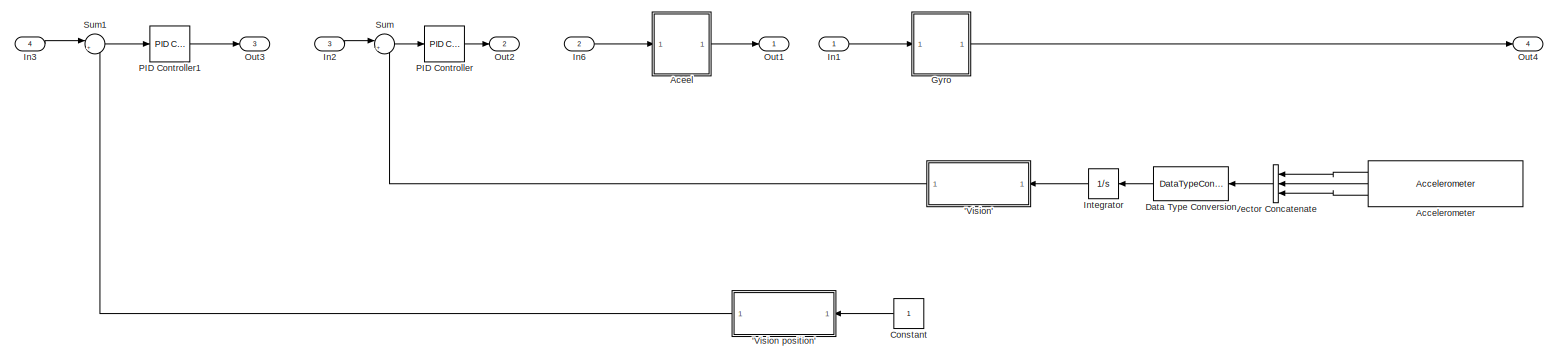
[diagram: root canvas - part 1/1, most of the canvas]
MODEL slx_53954860bcf5
KIND model
CONFIG AbsTol = auto
CONFIG EnableMultiTasking = off
CONFIG FixedStep = auto
CONFIG MaxStep = auto
CONFIG MinStep = auto
CONFIG RelTol = 1e-3
CONFIG SampleTimeConstraint = Unconstrained
CONFIG Solver = VariableStepAuto
CONFIG SolverName = VariableStepAuto
CONFIG StartTime = 0.0
CONFIG StopTime = 10.0
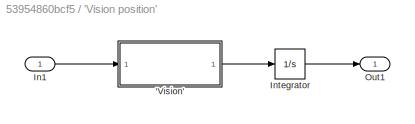
BLOCK [SubSystem] 'Vision position'
  Ports = [1, 1]
  RequestExecContextInheritance = off
  Variant = off
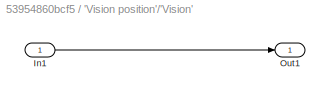
BLOCK [SubSystem] 'Vision position'/'Vision'
  Ports = [1, 1]
  RequestExecContextInheritance = off
  Variant = off
BLOCK [Inport] 'Vision position'/'Vision'/In1
  IconDisplay = Port number
BLOCK [Outport] 'Vision position'/'Vision'/Out1
  IconDisplay = Port number
BLOCK [Inport] 'Vision position'/In1
  IconDisplay = Port number
BLOCK [Integrator] 'Vision position'/Integrator
  Ports = [1, 1]
BLOCK [Outport] 'Vision position'/Out1
  IconDisplay = Port number
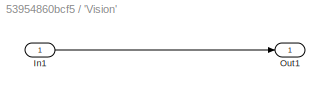
BLOCK [SubSystem] 'Vision'
  Ports = [1, 1]
  RequestExecContextInheritance = off
  Variant = off
BLOCK [Inport] 'Vision'/In1
  IconDisplay = Port number
BLOCK [Outport] 'Vision'/Out1
  IconDisplay = Port number
BLOCK [Reference] Accelerometer  REF=RASPlib/Accelerometer
  Ports = [0, 3]
  SourceBlock = RASPlib/Accelerometer
  SourceProductName = Rensselaer Arduino Support Package
  SourceType = soMPU6050Accel
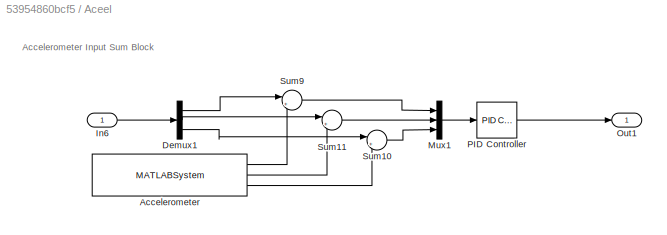
BLOCK [SubSystem] Aceel 
  Ports = [1, 1]
  RequestExecContextInheritance = off
  Variant = off
BLOCK [MATLABSystem] Aceel /Accelerometer
  MaskDisplay = disp('soMPU6050Accel');\nport_label('output',1,'xaccel');\nport_label('output',2,'yaccel');\nport_label('output',3,'zaccel');
  MaskType = soMPU6050Accel
  Ports = [0, 3]
  SimulateUsing = Code generation
  System = soMPU6050Accel
BLOCK [Demux] Aceel /Demux1
  DisplayOption = bar
  Outputs = 3
  Ports = [1, 3]
BLOCK [Inport] Aceel /In6
  IconDisplay = Port number
BLOCK [Mux] Aceel /Mux1
  DisplayOption = bar
  Inputs = 3
  Ports = [3, 1]
BLOCK [Outport] Aceel /Out1
  IconDisplay = Port number
BLOCK [Reference] Aceel /PID Controller  REF=simulink/Continuous/PID Controller
  Ports = [1, 1]
  SourceBlock = simulink/Continuous/PID Controller
  SourceProductBaseCode = SL
  SourceProductName = Simulink
  SourceType = PID 1dof
BLOCK [Sum] Aceel /Sum10
  IconShape = round
  InputSameDT = off
  Inputs = |+-
  OutDataTypeStr = Inherit: Inherit via internal rule
  Ports = [2, 1]
  SaturateOnIntegerOverflow = off
BLOCK [Sum] Aceel /Sum11
  IconShape = round
  InputSameDT = off
  Inputs = |+-
  OutDataTypeStr = Inherit: Inherit via internal rule
  Ports = [2, 1]
  SaturateOnIntegerOverflow = off
BLOCK [Sum] Aceel /Sum9
  IconShape = round
  InputSameDT = off
  Inputs = |+-
  OutDataTypeStr = Inherit: Inherit via internal rule
  Ports = [2, 1]
  SaturateOnIntegerOverflow = off
BLOCK [Constant] Constant
BLOCK [DataTypeConversion] Data Type Conversion
  OutDataTypeStr = double
  RndMeth = Floor
  SaturateOnIntegerOverflow = off
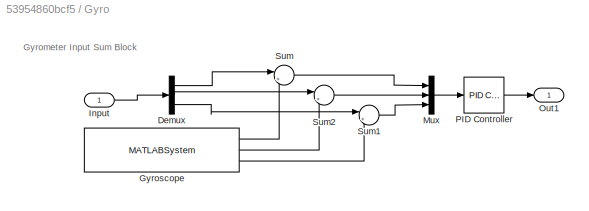
BLOCK [SubSystem] Gyro
  Ports = [1, 1]
  RequestExecContextInheritance = off
  Variant = off
BLOCK [Demux] Gyro/Demux
  DisplayOption = bar
  Outputs = 3
  Ports = [1, 3]
BLOCK [MATLABSystem] Gyro/Gyroscope
  DLPFmode = 0
  MaskDisplay = disp('soMPU6050Gyro');\nport_label('output',1,'xvel');\nport_label('output',2,'yvel');\nport_label('output',3,'zvel');
  MaskType = soMPU6050Gyro
  Ports = [0, 3]
  System = soMPU6050Gyro
BLOCK [Inport] Gyro/Input
  IconDisplay = Port number
BLOCK [Mux] Gyro/Mux
  DisplayOption = bar
  Inputs = 3
  Ports = [3, 1]
BLOCK [Outport] Gyro/Out1
  IconDisplay = Port number
BLOCK [Reference] Gyro/PID Controller  REF=simulink/Continuous/PID Controller
  Ports = [1, 1]
  SourceBlock = simulink/Continuous/PID Controller
  SourceProductBaseCode = SL
  SourceProductName = Simulink
  SourceType = PID 1dof
BLOCK [Sum] Gyro/Sum
  IconShape = round
  InputSameDT = off
  Inputs = |+-
  OutDataTypeStr = Inherit: Inherit via internal rule
  Ports = [2, 1]
  SaturateOnIntegerOverflow = off
BLOCK [Sum] Gyro/Sum1
  IconShape = round
  InputSameDT = off
  Inputs = |+-
  OutDataTypeStr = Inherit: Inherit via internal rule
  Ports = [2, 1]
  SaturateOnIntegerOverflow = off
BLOCK [Sum] Gyro/Sum2
  IconShape = round
  InputSameDT = off
  Inputs = |+-
  OutDataTypeStr = Inherit: Inherit via internal rule
  Ports = [2, 1]
  SaturateOnIntegerOverflow = off
BLOCK [Inport] In1
  IconDisplay = Port number
BLOCK [Inport] In2
  IconDisplay = Port number
  Port = 3
BLOCK [Inport] In3
  IconDisplay = Port number
  Port = 4
BLOCK [Inport] In6
  IconDisplay = Port number
  Port = 2
BLOCK [Integrator] Integrator
  Ports = [1, 1]
BLOCK [Outport] Out1
  IconDisplay = Port number
BLOCK [Outport] Out2
  IconDisplay = Port number
  Port = 2
BLOCK [Outport] Out3
  IconDisplay = Port number
  Port = 3
BLOCK [Outport] Out4
  IconDisplay = Port number
  Port = 4
BLOCK [Reference] PID Controller  REF=simulink/Continuous/PID Controller
  Ports = [1, 1]
  SourceBlock = simulink/Continuous/PID Controller
  SourceProductBaseCode = SL
  SourceProductName = Simulink
  SourceType = PID 1dof
BLOCK [Reference] PID Controller1  REF=simulink/Continuous/PID Controller
  Ports = [1, 1]
  SourceBlock = simulink/Continuous/PID Controller
  SourceProductBaseCode = SL
  SourceProductName = Simulink
  SourceType = PID 1dof
BLOCK [Sum] Sum
  IconShape = round
  InputSameDT = off
  Inputs = |+-
  OutDataTypeStr = Inherit: Inherit via internal rule
  Ports = [2, 1]
  SaturateOnIntegerOverflow = off
BLOCK [Sum] Sum1
  IconShape = round
  InputSameDT = off
  Inputs = |+-
  OutDataTypeStr = Inherit: Inherit via internal rule
  Ports = [2, 1]
  SaturateOnIntegerOverflow = off
BLOCK [Concatenate] Vector Concatenate
  NumInputs = 3
  Ports = [3, 1]
ANNOTATION Aceel : Accelerometer Input Sum Block
ANNOTATION Gyro: Gyrometer Input Sum Block
LINE 'Vision position'/'Vision'/In1:1 -> 'Vision position'/'Vision'/Out1:1
LINE 'Vision position'/'Vision':1 -> 'Vision position'/Integrator:1
LINE 'Vision position'/In1:1 -> 'Vision position'/'Vision':1
LINE 'Vision position'/Integrator:1 -> 'Vision position'/Out1:1
LINE 'Vision position':1 -> Sum1:2
LINE 'Vision'/In1:1 -> 'Vision'/Out1:1
LINE 'Vision':1 -> Sum:2
LINE Accelerometer:1 -> Vector Concatenate:1
LINE Accelerometer:2 -> Vector Concatenate:2
LINE Accelerometer:3 -> Vector Concatenate:3
LINE Aceel /Accelerometer:1 -> Aceel /Sum9:2
LINE Aceel /Accelerometer:2 -> Aceel /Sum11:2
LINE Aceel /Accelerometer:3 -> Aceel /Sum10:2
LINE Aceel /Demux1:1 -> Aceel /Sum9:1
LINE Aceel /Demux1:2 -> Aceel /Sum11:1
LINE Aceel /Demux1:3 -> Aceel /Sum10:1
LINE Aceel /In6:1 -> Aceel /Demux1:1
LINE Aceel /Mux1:1 -> Aceel /PID Controller:1
LINE Aceel /PID Controller:1 -> Aceel /Out1:1
LINE Aceel /Sum10:1 -> Aceel /Mux1:3
LINE Aceel /Sum11:1 -> Aceel /Mux1:2
LINE Aceel /Sum9:1 -> Aceel /Mux1:1
LINE Aceel :1 -> Out1:1
LINE Constant:1 -> 'Vision position':1
LINE Data Type Conversion:1 -> Integrator:1
LINE Gyro/Demux:1 -> Gyro/Sum:1
LINE Gyro/Demux:2 -> Gyro/Sum2:1
LINE Gyro/Demux:3 -> Gyro/Sum1:1
LINE Gyro/Gyroscope:1 -> Gyro/Sum:2
LINE Gyro/Gyroscope:2 -> Gyro/Sum2:2
LINE Gyro/Gyroscope:3 -> Gyro/Sum1:2
LINE Gyro/Input:1 -> Gyro/Demux:1
LINE Gyro/Mux:1 -> Gyro/PID Controller:1
LINE Gyro/PID Controller:1 -> Gyro/Out1:1
LINE Gyro/Sum1:1 -> Gyro/Mux:3
LINE Gyro/Sum2:1 -> Gyro/Mux:2
LINE Gyro/Sum:1 -> Gyro/Mux:1
LINE Gyro:1 -> Out4:1
LINE In1:1 -> Gyro:1
LINE In2:1 -> Sum:1
LINE In3:1 -> Sum1:1
LINE In6:1 -> Aceel :1
LINE Integrator:1 -> 'Vision':1
LINE PID Controller1:1 -> Out3:1
LINE PID Controller:1 -> Out2:1
LINE Sum1:1 -> PID Controller1:1
LINE Sum:1 -> PID Controller:1
LINE Vector Concatenate:1 -> Data Type Conversion:1
